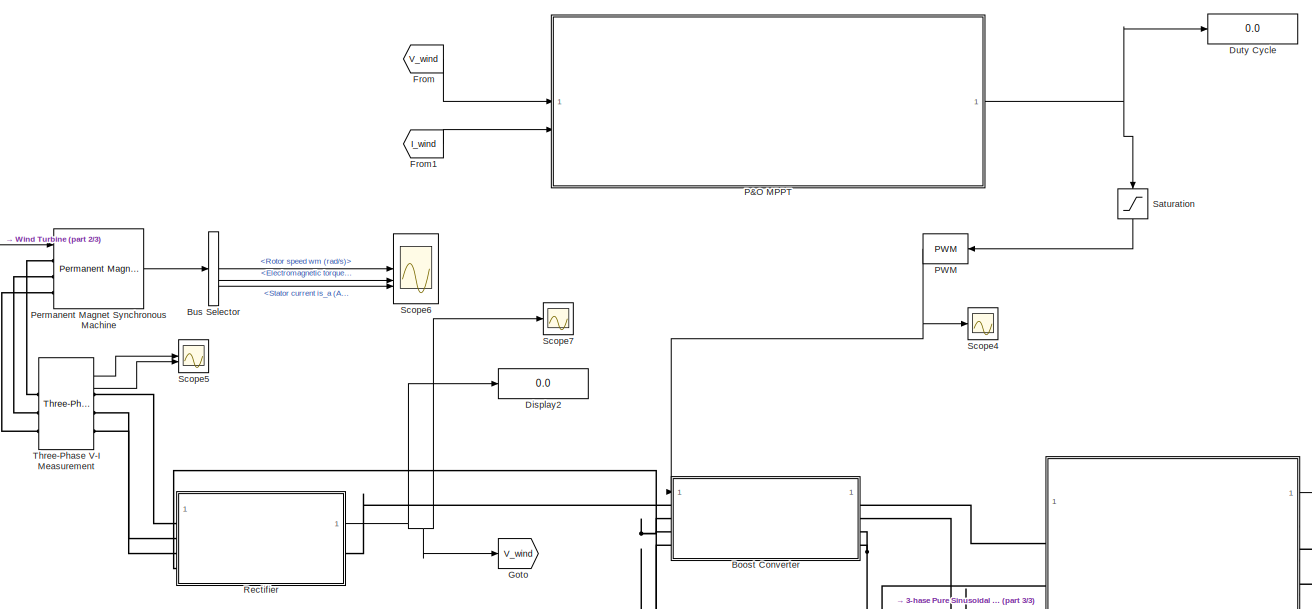
[diagram: root canvas - part 1/3, central region]
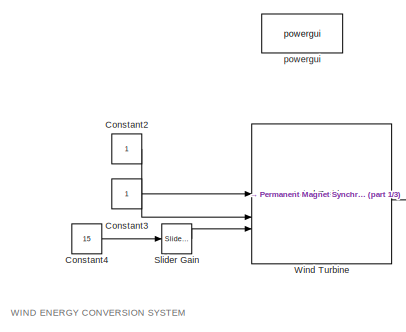
[diagram: root canvas - part 2/3, top left region]
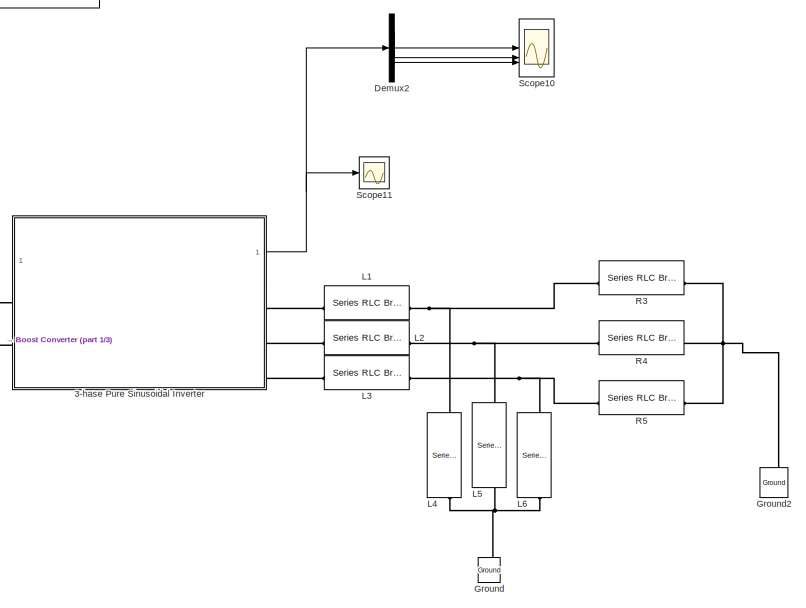
[diagram: root canvas - part 3/3, middle right region]
MODEL slx_7c10b3061226
KIND model
CONFIG AbsTol = auto
CONFIG EnableMultiTasking = off
CONFIG FixedStep = auto
CONFIG MaxStep = auto
CONFIG MinStep = auto
CONFIG RelTol = 1e-3
CONFIG SampleTimeConstraint = Unconstrained
CONFIG SolverName = VariableStepAuto
CONFIG StartTime = 0.0
CONFIG StopTime = 10.0
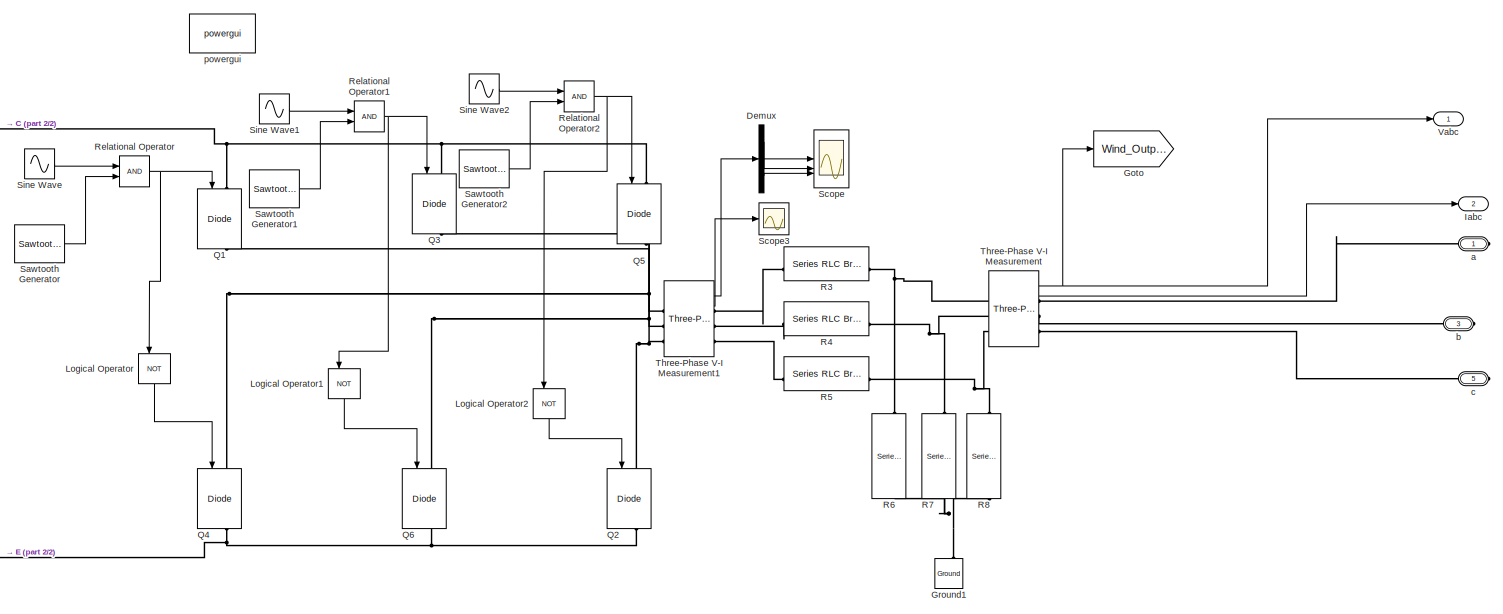
[diagram: 3-hase Pure Sinusoidal Inverter - part 1/2, most of the canvas]
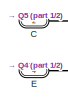
[diagram: 3-hase Pure Sinusoidal Inverter - part 2/2, middle left region]
BLOCK [SubSystem] 3-hase Pure Sinusoidal Inverter
BLOCK [PMIOPort] 3-hase Pure Sinusoidal Inverter/C
  Port = 2
  Side = Left
BLOCK [Demux] 3-hase Pure Sinusoidal Inverter/Demux
  Outputs = 3
BLOCK [PMIOPort] 3-hase Pure Sinusoidal Inverter/E
  Port = 4
  Side = Left
BLOCK [Goto] 3-hase Pure Sinusoidal Inverter/Goto
  GotoTag = Wind_Output
BLOCK [Reference] 3-hase Pure Sinusoidal Inverter/Ground1  REF=spsGroundLib/Ground
  LibrarySourceBlock = sps_lib/Utilities/Ground
  NameLocation = right
  SourceBlock = spsGroundLib/Ground
  SourceType = Ground
BLOCK [Outport] 3-hase Pure Sinusoidal Inverter/Iabc
  Port = 2
BLOCK [Logic] 3-hase Pure Sinusoidal Inverter/Logical Operator
  AllPortsSameDT = off
  NameLocation = left
  Operator = NOT
  OutDataTypeStr = boolean
BLOCK [Logic] 3-hase Pure Sinusoidal Inverter/Logical Operator1
  AllPortsSameDT = off
  NameLocation = left
  Operator = NOT
  OutDataTypeStr = boolean
BLOCK [Logic] 3-hase Pure Sinusoidal Inverter/Logical Operator2
  AllPortsSameDT = off
  NameLocation = left
  Operator = NOT
  OutDataTypeStr = boolean
BLOCK [Reference] 3-hase Pure Sinusoidal Inverter/Q1  REF=spsIGBTDiodeLib/IGBT//Diode
  LibrarySourceBlock = sps_lib/Power Electronics/IGBT//Diode
  NameLocation = left
  SourceBlock = spsIGBTDiodeLib/IGBT//Diode
  SourceType = IGBT/Diode
BLOCK [Reference] 3-hase Pure Sinusoidal Inverter/Q2  REF=spsIGBTDiodeLib/IGBT//Diode
  LibrarySourceBlock = sps_lib/Power Electronics/IGBT//Diode
  NameLocation = left
  SourceBlock = spsIGBTDiodeLib/IGBT//Diode
  SourceType = IGBT/Diode
BLOCK [Reference] 3-hase Pure Sinusoidal Inverter/Q3  REF=spsIGBTDiodeLib/IGBT//Diode
  LibrarySourceBlock = sps_lib/Power Electronics/IGBT//Diode
  NameLocation = left
  SourceBlock = spsIGBTDiodeLib/IGBT//Diode
  SourceType = IGBT/Diode
BLOCK [Reference] 3-hase Pure Sinusoidal Inverter/Q4  REF=spsIGBTDiodeLib/IGBT//Diode
  LibrarySourceBlock = sps_lib/Power Electronics/IGBT//Diode
  NameLocation = left
  SourceBlock = spsIGBTDiodeLib/IGBT//Diode
  SourceType = IGBT/Diode
BLOCK [Reference] 3-hase Pure Sinusoidal Inverter/Q5  REF=spsIGBTDiodeLib/IGBT//Diode
  LibrarySourceBlock = sps_lib/Power Electronics/IGBT//Diode
  NameLocation = left
  SourceBlock = spsIGBTDiodeLib/IGBT//Diode
  SourceType = IGBT/Diode
BLOCK [Reference] 3-hase Pure Sinusoidal Inverter/Q6  REF=spsIGBTDiodeLib/IGBT//Diode
  LibrarySourceBlock = sps_lib/Power Electronics/IGBT//Diode
  NameLocation = left
  SourceBlock = spsIGBTDiodeLib/IGBT//Diode
  SourceType = IGBT/Diode
BLOCK [Reference] 3-hase Pure Sinusoidal Inverter/R3  REF=spsSeriesRLCBranchLib/Series RLC Branch
  LibrarySourceBlock = sps_lib/Passives/Series RLC Branch
  SourceBlock = spsSeriesRLCBranchLib/Series RLC Branch
  SourceType = Series RLC Branch
BLOCK [Reference] 3-hase Pure Sinusoidal Inverter/R4  REF=spsSeriesRLCBranchLib/Series RLC Branch
  LibrarySourceBlock = sps_lib/Passives/Series RLC Branch
  SourceBlock = spsSeriesRLCBranchLib/Series RLC Branch
  SourceType = Series RLC Branch
BLOCK [Reference] 3-hase Pure Sinusoidal Inverter/R5  REF=spsSeriesRLCBranchLib/Series RLC Branch
  LibrarySourceBlock = sps_lib/Passives/Series RLC Branch
  SourceBlock = spsSeriesRLCBranchLib/Series RLC Branch
  SourceType = Series RLC Branch
BLOCK [Reference] 3-hase Pure Sinusoidal Inverter/R6  REF=spsSeriesRLCBranchLib/Series RLC Branch
  LibrarySourceBlock = sps_lib/Passives/Series RLC Branch
  NameLocation = left
  SourceBlock = spsSeriesRLCBranchLib/Series RLC Branch
  SourceType = Series RLC Branch
BLOCK [Reference] 3-hase Pure Sinusoidal Inverter/R7  REF=spsSeriesRLCBranchLib/Series RLC Branch
  LibrarySourceBlock = sps_lib/Passives/Series RLC Branch
  NameLocation = left
  SourceBlock = spsSeriesRLCBranchLib/Series RLC Branch
  SourceType = Series RLC Branch
BLOCK [Reference] 3-hase Pure Sinusoidal Inverter/R8  REF=spsSeriesRLCBranchLib/Series RLC Branch
  LibrarySourceBlock = sps_lib/Passives/Series RLC Branch
  NameLocation = left
  SourceBlock = spsSeriesRLCBranchLib/Series RLC Branch
  SourceType = Series RLC Branch
BLOCK [RelationalOperator] 3-hase Pure Sinusoidal Inverter/Relational Operator
  InputSameDT = off
  OutDataTypeStr = boolean
BLOCK [RelationalOperator] 3-hase Pure Sinusoidal Inverter/Relational Operator1
  InputSameDT = off
  OutDataTypeStr = boolean
BLOCK [RelationalOperator] 3-hase Pure Sinusoidal Inverter/Relational Operator2
  InputSameDT = off
  OutDataTypeStr = boolean
BLOCK [Reference] 3-hase Pure Sinusoidal Inverter/Sawtooth Generator  REF=spsSawtoothGeneratorLib/Sawtooth
Generator
  LibrarySourceBlock = sps_lib/Sources/Signal Generator Sources/Sawtooth\nGenerator
  SourceBlock = spsSawtoothGeneratorLib/Sawtooth\nGenerator
  SourceType = Sawtooth Generator
BLOCK [Reference] 3-hase Pure Sinusoidal Inverter/Sawtooth Generator1  REF=spsSawtoothGeneratorLib/Sawtooth
Generator
  LibrarySourceBlock = sps_lib/Sources/Signal Generator Sources/Sawtooth\nGenerator
  SourceBlock = spsSawtoothGeneratorLib/Sawtooth\nGenerator
  SourceType = Sawtooth Generator
BLOCK [Reference] 3-hase Pure Sinusoidal Inverter/Sawtooth Generator2  REF=spsSawtoothGeneratorLib/Sawtooth
Generator
  LibrarySourceBlock = sps_lib/Sources/Signal Generator Sources/Sawtooth\nGenerator
  SourceBlock = spsSawtoothGeneratorLib/Sawtooth\nGenerator
  SourceType = Sawtooth Generator
BLOCK [Scope] 3-hase Pure Sinusoidal Inverter/Scope
  Floating = off
  NumInputPorts = 3
  ScopeSpecificationString = Simulink.scopes.TimeScopeBlockCfg('CurrentConfiguration', extmgr.ConfigurationSet(extmgr.Configuration('Core','General UI',true),extmgr.Configuration('Core','Source UI',true),extmgr.Configuration('Sources','WiredSimulink',true,'DataLoggingLimitDataPoints',true,'DataLoggingSaveFormat','Array','DataLoggingDecimation','1','DataLoggingDecimateData',true),extmgr.Configuration('Visuals','Time Domain',tr...<+3315ch>
BLOCK [Scope] 3-hase Pure Sinusoidal Inverter/Scope3
  Floating = off
  NumInputPorts = 1
  ScopeSpecificationString = Simulink.scopes.TimeScopeBlockCfg('CurrentConfiguration', extmgr.ConfigurationSet(extmgr.Configuration('Core','General UI',true),extmgr.Configuration('Core','Source UI',true),extmgr.Configuration('Sources','WiredSimulink',true,'DataLoggingVariableName','ScopeData3'),extmgr.Configuration('Visuals','Time Domain',true),extmgr.Configuration('Tools','Plot Navigation',true),extmgr.Configuration('Tools',...<+40ch>
BLOCK [Sin] 3-hase Pure Sinusoidal Inverter/Sine Wave
  Amplitude = 0.9
  Frequency = 2*pi*50
  SampleTime = 0
BLOCK [Sin] 3-hase Pure Sinusoidal Inverter/Sine Wave1
  Amplitude = 0.9
  Frequency = 2*pi*50
  Phase = 120*(pi/180)
  SampleTime = 0
BLOCK [Sin] 3-hase Pure Sinusoidal Inverter/Sine Wave2
  Amplitude = 0.9
  Frequency = 2*pi*50
  Phase = 240*(pi/180)
  SampleTime = 0
BLOCK [Reference] 3-hase Pure Sinusoidal Inverter/Three-Phase V-I Measurement  REF=spsThreePhaseVIMeasurementLib/Three-Phase
V-I Measurement
  LibrarySourceBlock = sps_lib/Sensors and Measurements/Three-Phase\nV-I Measurement
  SourceBlock = spsThreePhaseVIMeasurementLib/Three-Phase\nV-I Measurement
  SourceType = Three-Phase VI Measurement
BLOCK [Reference] 3-hase Pure Sinusoidal Inverter/Three-Phase V-I Measurement1  REF=spsThreePhaseVIMeasurementLib/Three-Phase
V-I Measurement
  LibrarySourceBlock = sps_lib/Sensors and Measurements/Three-Phase\nV-I Measurement
  SourceBlock = spsThreePhaseVIMeasurementLib/Three-Phase\nV-I Measurement
  SourceType = Three-Phase VI Measurement
BLOCK [Outport] 3-hase Pure Sinusoidal Inverter/Vabc
BLOCK [PMIOPort] 3-hase Pure Sinusoidal Inverter/a
  Side = Right
BLOCK [PMIOPort] 3-hase Pure Sinusoidal Inverter/b
  Port = 3
  Side = Right
BLOCK [PMIOPort] 3-hase Pure Sinusoidal Inverter/c
  Port = 5
  Side = Right
BLOCK [Reference] 3-hase Pure Sinusoidal Inverter/powergui  REF=spspowerguiLib/powergui
  LibrarySourceBlock = sps_lib/powergui
  Priority = 1
  SourceBlock = spspowerguiLib/powergui
  SourceType = PSB option menu block
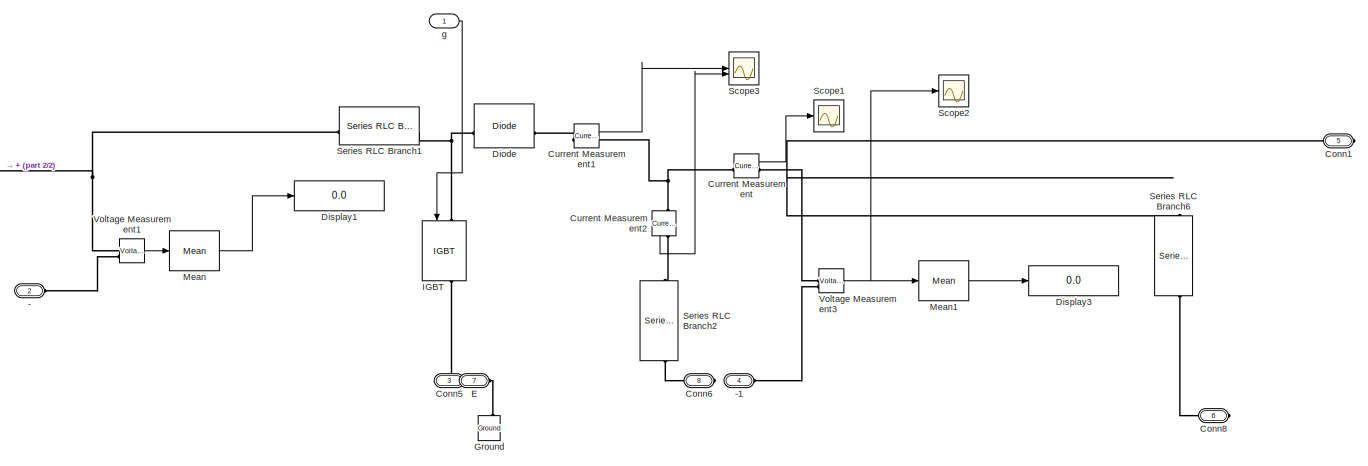
[diagram: Boost Converter - part 1/2, right side, full height]
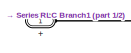
[diagram: Boost Converter - part 2/2, middle left region]
BLOCK [SubSystem] Boost Converter
BLOCK [PMIOPort] Boost Converter/+
  Side = Left
BLOCK [PMIOPort] Boost Converter/-
  Port = 2
  Side = Left
BLOCK [PMIOPort] Boost Converter/-1
  Port = 4
  Side = Left
BLOCK [PMIOPort] Boost Converter/Conn1
  Port = 5
  Side = Right
BLOCK [PMIOPort] Boost Converter/Conn5
  Port = 3
  Side = Left
BLOCK [PMIOPort] Boost Converter/Conn6
  Port = 8
  Side = Right
BLOCK [PMIOPort] Boost Converter/Conn8
  Port = 6
  Side = Right
BLOCK [Reference] Boost Converter/Current Measurement  REF=spsCurrentMeasurementLib/Current Measurement
  LibrarySourceBlock = sps_lib/Sensors and Measurements/Current Measurement
  SourceBlock = spsCurrentMeasurementLib/Current Measurement
  SourceType = Current Measurement
  UserDataPersistent = on
BLOCK [Reference] Boost Converter/Current Measurement1  REF=spsCurrentMeasurementLib/Current Measurement
  LibrarySourceBlock = sps_lib/Sensors and Measurements/Current Measurement
  SourceBlock = spsCurrentMeasurementLib/Current Measurement
  SourceType = Current Measurement
  UserDataPersistent = on
BLOCK [Reference] Boost Converter/Current Measurement2  REF=spsCurrentMeasurementLib/Current Measurement
  LibrarySourceBlock = sps_lib/Sensors and Measurements/Current Measurement
  NameLocation = left
  SourceBlock = spsCurrentMeasurementLib/Current Measurement
  SourceType = Current Measurement
  UserDataPersistent = on
BLOCK [Reference] Boost Converter/Diode  REF=spsDiodeLib/Diode
  LibrarySourceBlock = sps_lib/Power Electronics/Diode
  SourceBlock = spsDiodeLib/Diode
  SourceType = Diode
BLOCK [Display] Boost Converter/Display1
  Decimation = 1
BLOCK [Display] Boost Converter/Display3
  Decimation = 1
BLOCK [PMIOPort] Boost Converter/E
  Port = 7
  Side = Right
BLOCK [Reference] Boost Converter/Ground  REF=spsGroundLib/Ground
  LibrarySourceBlock = sps_lib/Utilities/Ground
  NameLocation = right
  SourceBlock = spsGroundLib/Ground
  SourceType = Ground
BLOCK [Reference] Boost Converter/IGBT  REF=spsIGBTLib/IGBT
  LibrarySourceBlock = sps_lib/Power Electronics/IGBT
  NameLocation = left
  SourceBlock = spsIGBTLib/IGBT
  SourceType = IGBT
BLOCK [Reference] Boost Converter/Mean  REF=spsMeanLib/Mean
  LibrarySourceBlock = sps_lib/Sensors and Measurements/Mean
  SourceBlock = spsMeanLib/Mean
  SourceType = Mean
BLOCK [Reference] Boost Converter/Mean1  REF=spsMeanLib/Mean
  LibrarySourceBlock = sps_lib/Sensors and Measurements/Mean
  SourceBlock = spsMeanLib/Mean
  SourceType = Mean
BLOCK [Scope] Boost Converter/Scope1
  Floating = off
  NumInputPorts = 1
  ScopeSpecificationString = Simulink.scopes.TimeScopeBlockCfg('CurrentConfiguration', extmgr.ConfigurationSet(extmgr.Configuration('Core','General UI',true),extmgr.Configuration('Core','Source UI',true),extmgr.Configuration('Sources','WiredSimulink',true,'DataLoggingVariableName','ScopeData1'),extmgr.Configuration('Visuals','Time Domain',true,'SerializedDisplays',{struct('MinYLimReal','-0.03717','MaxYLimReal','0.3345','YLabe...<+1563ch>
BLOCK [Scope] Boost Converter/Scope2
  Floating = off
  NumInputPorts = 1
  ScopeSpecificationString = Simulink.scopes.TimeScopeBlockCfg('CurrentConfiguration', extmgr.ConfigurationSet(extmgr.Configuration('Core','General UI',true),extmgr.Configuration('Core','Source UI',true),extmgr.Configuration('Sources','WiredSimulink',true,'DataLoggingVariableName','ScopeData2'),extmgr.Configuration('Visuals','Time Domain',true,'SerializedDisplays',{struct('MinYLimReal','-0.14141','MaxYLimReal','1.27266','YLab...<+1568ch>
BLOCK [Scope] Boost Converter/Scope3
  Floating = off
  NumInputPorts = 2
  ScopeSpecificationString = Simulink.scopes.TimeScopeBlockCfg('CurrentConfiguration', extmgr.ConfigurationSet(extmgr.Configuration('Core','General UI',true),extmgr.Configuration('Core','Source UI',true),extmgr.Configuration('Sources','WiredSimulink',true,'DataLoggingVariableName','ScopeData3'),extmgr.Configuration('Visuals','Time Domain',true,'SerializedDisplays',{struct('MinYLimReal','-1.13646','MaxYLimReal','8.81548','YLab...<+2426ch>
BLOCK [Reference] Boost Converter/Series RLC Branch1  REF=spsSeriesRLCBranchLib/Series RLC Branch
  LibrarySourceBlock = sps_lib/Passives/Series RLC Branch
  SourceBlock = spsSeriesRLCBranchLib/Series RLC Branch
  SourceType = Series RLC Branch
BLOCK [Reference] Boost Converter/Series RLC Branch2  REF=spsSeriesRLCBranchLib/Series RLC Branch
  LibrarySourceBlock = sps_lib/Passives/Series RLC Branch
  NameLocation = left
  SourceBlock = spsSeriesRLCBranchLib/Series RLC Branch
  SourceType = Series RLC Branch
BLOCK [Reference] Boost Converter/Series RLC Branch6  REF=spsSeriesRLCBranchLib/Series RLC Branch
  LibrarySourceBlock = sps_lib/Passives/Series RLC Branch
  NameLocation = left
  SourceBlock = spsSeriesRLCBranchLib/Series RLC Branch
  SourceType = Series RLC Branch
BLOCK [Reference] Boost Converter/Voltage Measurement1  REF=spsVoltageMeasurementLib/Voltage Measurement
  LibrarySourceBlock = sps_lib/Sensors and Measurements/Voltage Measurement
  SourceBlock = spsVoltageMeasurementLib/Voltage Measurement
  SourceType = Voltage Measurement
  UserDataPersistent = on
BLOCK [Reference] Boost Converter/Voltage Measurement3  REF=spsVoltageMeasurementLib/Voltage Measurement
  LibrarySourceBlock = sps_lib/Sensors and Measurements/Voltage Measurement
  SourceBlock = spsVoltageMeasurementLib/Voltage Measurement
  SourceType = Voltage Measurement
  UserDataPersistent = on
BLOCK [Inport] Boost Converter/g
BLOCK [BusSelector] Bus Selector
  OutputSignals = Rotor speed wm (rad/s),Electromagnetic torque Te (N*m),Stator current is_a (A)
BLOCK [Constant] Constant2
BLOCK [Constant] Constant3
BLOCK [Constant] Constant4
  Value = 15
BLOCK [Demux] Demux2
  Outputs = 3
BLOCK [Display] Display2
  Decimation = 1
BLOCK [Display] Duty Cycle
  Decimation = 1
BLOCK [From] From
  GotoTag = V_wind
BLOCK [From] From1
  GotoTag = I_wind
BLOCK [Goto] Goto
  GotoTag = V_wind
BLOCK [Reference] Ground  REF=spsGroundLib/Ground
  LibrarySourceBlock = sps_lib/Utilities/Ground
  NameLocation = right
  SourceBlock = spsGroundLib/Ground
  SourceType = Ground
BLOCK [Reference] Ground2  REF=spsGroundLib/Ground
  LibrarySourceBlock = sps_lib/Utilities/Ground
  NameLocation = right
  SourceBlock = spsGroundLib/Ground
  SourceType = Ground
BLOCK [Reference] L1  REF=spsSeriesRLCBranchLib/Series RLC Branch
  LibrarySourceBlock = sps_lib/Passives/Series RLC Branch
  SourceBlock = spsSeriesRLCBranchLib/Series RLC Branch
  SourceType = Series RLC Branch
BLOCK [Reference] L2  REF=spsSeriesRLCBranchLib/Series RLC Branch
  LibrarySourceBlock = sps_lib/Passives/Series RLC Branch
  SourceBlock = spsSeriesRLCBranchLib/Series RLC Branch
  SourceType = Series RLC Branch
BLOCK [Reference] L3  REF=spsSeriesRLCBranchLib/Series RLC Branch
  LibrarySourceBlock = sps_lib/Passives/Series RLC Branch
  SourceBlock = spsSeriesRLCBranchLib/Series RLC Branch
  SourceType = Series RLC Branch
BLOCK [Reference] L4  REF=spsSeriesRLCBranchLib/Series RLC Branch
  LibrarySourceBlock = sps_lib/Passives/Series RLC Branch
  NameLocation = right
  SourceBlock = spsSeriesRLCBranchLib/Series RLC Branch
  SourceType = Series RLC Branch
BLOCK [Reference] L5  REF=spsSeriesRLCBranchLib/Series RLC Branch
  LibrarySourceBlock = sps_lib/Passives/Series RLC Branch
  NameLocation = right
  SourceBlock = spsSeriesRLCBranchLib/Series RLC Branch
  SourceType = Series RLC Branch
BLOCK [Reference] L6  REF=spsSeriesRLCBranchLib/Series RLC Branch
  LibrarySourceBlock = sps_lib/Passives/Series RLC Branch
  NameLocation = right
  SourceBlock = spsSeriesRLCBranchLib/Series RLC Branch
  SourceType = Series RLC Branch
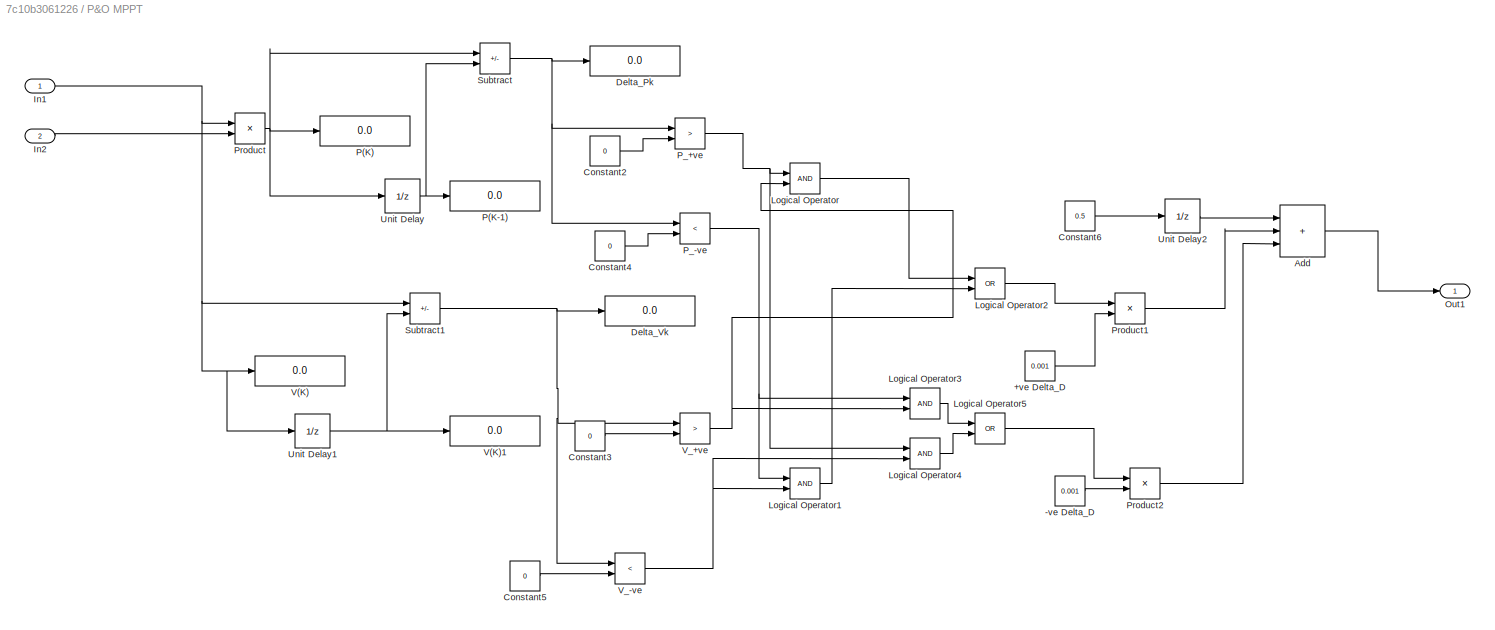
BLOCK [SubSystem] P&O MPPT
BLOCK [Constant] P&O MPPT/+ve Delta_D
  Value = 0.001
BLOCK [Constant] P&O MPPT/-ve Delta_D
  Value = 0.001
BLOCK [Sum] P&O MPPT/Add
  IconShape = rectangular
  Inputs = +++
BLOCK [Constant] P&O MPPT/Constant2
  Value = 0
BLOCK [Constant] P&O MPPT/Constant3
  Value = 0
BLOCK [Constant] P&O MPPT/Constant4
  Value = 0
BLOCK [Constant] P&O MPPT/Constant5
  Value = 0
BLOCK [Constant] P&O MPPT/Constant6
  Value = 0.5
BLOCK [Display] P&O MPPT/Delta_Pk
  Decimation = 1
BLOCK [Display] P&O MPPT/Delta_Vk
  Decimation = 1
BLOCK [Inport] P&O MPPT/In1
BLOCK [Inport] P&O MPPT/In2
  Port = 2
BLOCK [Logic] P&O MPPT/Logical Operator
  AllPortsSameDT = off
  OutDataTypeStr = boolean
BLOCK [Logic] P&O MPPT/Logical Operator1
  AllPortsSameDT = off
  OutDataTypeStr = boolean
BLOCK [Logic] P&O MPPT/Logical Operator2
  AllPortsSameDT = off
  Operator = OR
  OutDataTypeStr = boolean
BLOCK [Logic] P&O MPPT/Logical Operator3
  AllPortsSameDT = off
  OutDataTypeStr = boolean
BLOCK [Logic] P&O MPPT/Logical Operator4
  AllPortsSameDT = off
  OutDataTypeStr = boolean
BLOCK [Logic] P&O MPPT/Logical Operator5
  AllPortsSameDT = off
  Operator = OR
  OutDataTypeStr = boolean
BLOCK [Outport] P&O MPPT/Out1
BLOCK [Display] P&O MPPT/P(K)
  Decimation = 1
BLOCK [Display] P&O MPPT/P(K-1)
  Decimation = 1
BLOCK [RelationalOperator] P&O MPPT/P_+ve
  InputSameDT = off
  Operator = >
  OutDataTypeStr = boolean
  RndMeth = Simplest
BLOCK [RelationalOperator] P&O MPPT/P_-ve
  InputSameDT = off
  Operator = <
  OutDataTypeStr = boolean
  RndMeth = Simplest
BLOCK [Product] P&O MPPT/Product
BLOCK [Product] P&O MPPT/Product1
BLOCK [Product] P&O MPPT/Product2
BLOCK [Sum] P&O MPPT/Subtract
  IconShape = rectangular
  Inputs = +-
BLOCK [Sum] P&O MPPT/Subtract1
  IconShape = rectangular
  Inputs = +-
BLOCK [UnitDelay] P&O MPPT/Unit Delay
  HasFrameUpgradeWarning = on
  SampleTime = -1
BLOCK [UnitDelay] P&O MPPT/Unit Delay1
  HasFrameUpgradeWarning = on
  SampleTime = -1
BLOCK [UnitDelay] P&O MPPT/Unit Delay2
  HasFrameUpgradeWarning = on
  SampleTime = -1
BLOCK [Display] P&O MPPT/V(K)
  Decimation = 1
BLOCK [Display] P&O MPPT/V(K)1
  Decimation = 1
BLOCK [RelationalOperator] P&O MPPT/V_+ve
  InputSameDT = off
  Operator = >
  OutDataTypeStr = boolean
  RndMeth = Simplest
BLOCK [RelationalOperator] P&O MPPT/V_-ve
  InputSameDT = off
  Operator = <
  OutDataTypeStr = boolean
  RndMeth = Simplest
BLOCK [Reference] PWM  REF=simulink/Discontinuities/PWM
  DisableCoverage = on
  NameLocation = top
  SourceBlock = simulink/Discontinuities/PWM
  SourceType = PWM
BLOCK [Reference] Permanent Magnet Synchronous Machine  REF=spsPermanentMagnetSynchronousMachineLib/Permanent Magnet
Synchronous Machine
  LibrarySourceBlock = sps_lib/Electrical Machines/Permanent Magnet\nSynchronous Machine
  SourceBlock = spsPermanentMagnetSynchronousMachineLib/Permanent Magnet\nSynchronous Machine
  SourceType = Permanent Magnet Synchronous Machine
BLOCK [Reference] R3  REF=spsSeriesRLCBranchLib/Series RLC Branch
  LibrarySourceBlock = sps_lib/Passives/Series RLC Branch
  SourceBlock = spsSeriesRLCBranchLib/Series RLC Branch
  SourceType = Series RLC Branch
BLOCK [Reference] R4  REF=spsSeriesRLCBranchLib/Series RLC Branch
  LibrarySourceBlock = sps_lib/Passives/Series RLC Branch
  SourceBlock = spsSeriesRLCBranchLib/Series RLC Branch
  SourceType = Series RLC Branch
BLOCK [Reference] R5  REF=spsSeriesRLCBranchLib/Series RLC Branch
  LibrarySourceBlock = sps_lib/Passives/Series RLC Branch
  SourceBlock = spsSeriesRLCBranchLib/Series RLC Branch
  SourceType = Series RLC Branch
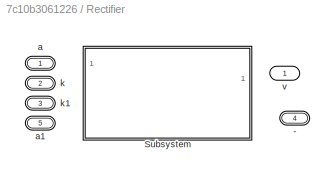
BLOCK [SubSystem] Rectifier
  LabelModeActiveChoice = Subsystem
  Variant = on
  VariantControl = Subsystem
  VariantControlMode = label
BLOCK [PMIOPort] Rectifier/-
  Port = 4
  Side = Right
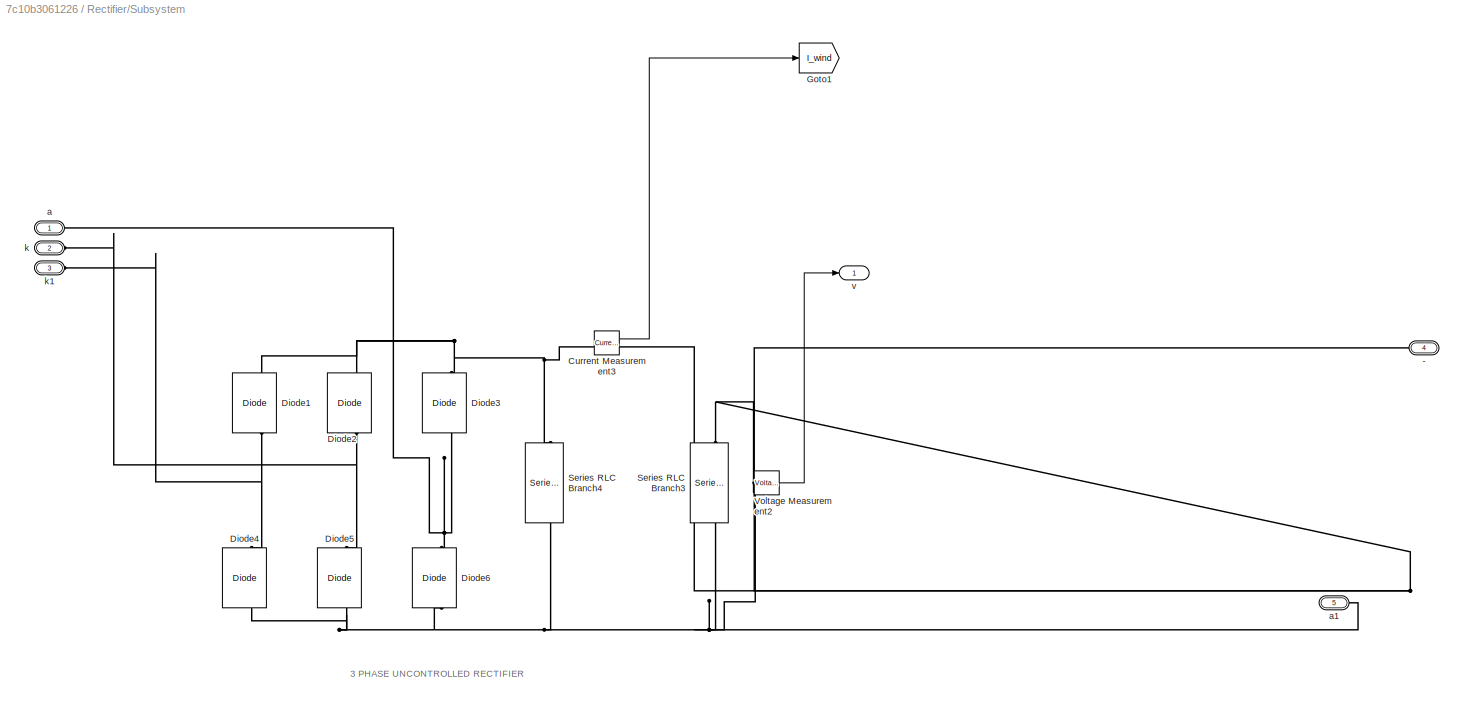
BLOCK [SubSystem] Rectifier/Subsystem
  VariantControl = Subsystem
BLOCK [PMIOPort] Rectifier/Subsystem/-
  Port = 4
  Side = Right
BLOCK [Reference] Rectifier/Subsystem/Current Measurement3  REF=spsCurrentMeasurementLib/Current Measurement
  LibrarySourceBlock = sps_lib/Sensors and Measurements/Current Measurement
  SourceBlock = spsCurrentMeasurementLib/Current Measurement
  SourceType = Current Measurement
  UserDataPersistent = on
BLOCK [Reference] Rectifier/Subsystem/Diode1  REF=spsDiodeLib/Diode
  LibrarySourceBlock = sps_lib/Power Electronics/Diode
  NameLocation = right
  SourceBlock = spsDiodeLib/Diode
  SourceType = Diode
BLOCK [Reference] Rectifier/Subsystem/Diode2  REF=spsDiodeLib/Diode
  LibrarySourceBlock = sps_lib/Power Electronics/Diode
  NameLocation = right
  SourceBlock = spsDiodeLib/Diode
  SourceType = Diode
BLOCK [Reference] Rectifier/Subsystem/Diode3  REF=spsDiodeLib/Diode
  LibrarySourceBlock = sps_lib/Power Electronics/Diode
  NameLocation = right
  SourceBlock = spsDiodeLib/Diode
  SourceType = Diode
BLOCK [Reference] Rectifier/Subsystem/Diode4  REF=spsDiodeLib/Diode
  LibrarySourceBlock = sps_lib/Power Electronics/Diode
  NameLocation = right
  SourceBlock = spsDiodeLib/Diode
  SourceType = Diode
BLOCK [Reference] Rectifier/Subsystem/Diode5  REF=spsDiodeLib/Diode
  LibrarySourceBlock = sps_lib/Power Electronics/Diode
  NameLocation = right
  SourceBlock = spsDiodeLib/Diode
  SourceType = Diode
BLOCK [Reference] Rectifier/Subsystem/Diode6  REF=spsDiodeLib/Diode
  LibrarySourceBlock = sps_lib/Power Electronics/Diode
  NameLocation = right
  SourceBlock = spsDiodeLib/Diode
  SourceType = Diode
BLOCK [Goto] Rectifier/Subsystem/Goto1
  GotoTag = I_wind
BLOCK [Reference] Rectifier/Subsystem/Series RLC Branch3  REF=spsSeriesRLCBranchLib/Series RLC Branch
  LibrarySourceBlock = sps_lib/Passives/Series RLC Branch
  NameLocation = left
  SourceBlock = spsSeriesRLCBranchLib/Series RLC Branch
  SourceType = Series RLC Branch
BLOCK [Reference] Rectifier/Subsystem/Series RLC Branch4  REF=spsSeriesRLCBranchLib/Series RLC Branch
  LibrarySourceBlock = sps_lib/Passives/Series RLC Branch
  NameLocation = left
  SourceBlock = spsSeriesRLCBranchLib/Series RLC Branch
  SourceType = Series RLC Branch
BLOCK [Reference] Rectifier/Subsystem/Voltage Measurement2  REF=spsVoltageMeasurementLib/Voltage Measurement
  LibrarySourceBlock = sps_lib/Sensors and Measurements/Voltage Measurement
  SourceBlock = spsVoltageMeasurementLib/Voltage Measurement
  SourceType = Voltage Measurement
  UserDataPersistent = on
BLOCK [PMIOPort] Rectifier/Subsystem/a
  Side = Left
BLOCK [PMIOPort] Rectifier/Subsystem/a1
  Port = 5
  Side = Left
BLOCK [PMIOPort] Rectifier/Subsystem/k
  Port = 2
  Side = Left
BLOCK [PMIOPort] Rectifier/Subsystem/k1
  Port = 3
  Side = Left
BLOCK [Outport] Rectifier/Subsystem/v
BLOCK [PMIOPort] Rectifier/a
  Side = Left
BLOCK [PMIOPort] Rectifier/a1
  Port = 5
  Side = Left
BLOCK [PMIOPort] Rectifier/k
  Port = 2
  Side = Left
BLOCK [PMIOPort] Rectifier/k1
  Port = 3
  Side = Left
BLOCK [Outport] Rectifier/v
BLOCK [Saturate] Saturation
  LowerLimit = 0.1
  NameLocation = left
  UpperLimit = 0.9
BLOCK [Scope] Scope10
  Floating = off
  NumInputPorts = 3
  ScopeSpecificationString = Simulink.scopes.TimeScopeBlockCfg('CurrentConfiguration', extmgr.ConfigurationSet(extmgr.Configuration('Core','General UI',true),extmgr.Configuration('Core','Source UI',true),extmgr.Configuration('Sources','WiredSimulink',true,'DataLoggingVariableName','ScopeData1','DataLoggingLimitDataPoints',true,'DataLoggingSaveFormat','Array','DataLoggingDecimation','1','DataLoggingDecimateData',true),extmgr.C...<+3342ch>
BLOCK [Scope] Scope11
  Floating = off
  NumInputPorts = 1
  ScopeSpecificationString = Simulink.scopes.TimeScopeBlockCfg('CurrentConfiguration', extmgr.ConfigurationSet(extmgr.Configuration('Core','General UI',true,'FigureColor',[0 1 1]),extmgr.Configuration('Core','Source UI',true),extmgr.Configuration('Sources','WiredSimulink',true,'DataLoggingVariableName','ScopeData2'),extmgr.Configuration('Visuals','Time Domain',true,'SerializedDisplays',{struct('MinYLimReal','-3.22858','MaxYLi...<+1656ch>
BLOCK [Scope] Scope4
  Floating = off
  NumInputPorts = 1
  ScopeSpecificationString = Simulink.scopes.TimeScopeBlockCfg('CurrentConfiguration', extmgr.ConfigurationSet(extmgr.Configuration('Core','General UI',true),extmgr.Configuration('Core','Source UI',true),extmgr.Configuration('Sources','WiredSimulink',true,'DataLoggingVariableName','ScopeData4'),extmgr.Configuration('Visuals','Time Domain',true,'SerializedDisplays',{struct('MinYLimReal','-0.125','MaxYLimReal','1.125','YLabelRe...<+1565ch>
BLOCK [Scope] Scope5
  Floating = off
  NumInputPorts = 2
  ScopeSpecificationString = Simulink.scopes.TimeScopeBlockCfg('CurrentConfiguration', extmgr.ConfigurationSet(extmgr.Configuration('Core','General UI',true,'FigureColor',[0 1 1]),extmgr.Configuration('Core','Source UI',true),extmgr.Configuration('Sources','WiredSimulink',true,'DataLoggingVariableName','ScopeData3'),extmgr.Configuration('Visuals','Time Domain',true,'SerializedDisplays',{struct('MinYLimReal','-4.73152','MaxYLi...<+2426ch>
BLOCK [Scope] Scope6
  Floating = off
  NumInputPorts = 3
  ScopeSpecificationString = Simulink.scopes.TimeScopeBlockCfg('CurrentConfiguration', extmgr.ConfigurationSet(extmgr.Configuration('Core','General UI',true,'FigureColor',[0 1 1]),extmgr.Configuration('Core','Source UI',true),extmgr.Configuration('Sources','WiredSimulink',true,'DataLoggingVariableName','ScopeData4'),extmgr.Configuration('Visuals','Time Domain',true,'SerializedDisplays',{struct('MinYLimReal','-0.54439','MaxYLi...<+3318ch>
BLOCK [Scope] Scope7
  Floating = off
  NumInputPorts = 1
  ScopeSpecificationString = Simulink.scopes.TimeScopeBlockCfg('CurrentConfiguration', extmgr.ConfigurationSet(extmgr.Configuration('Core','General UI',true),extmgr.Configuration('Core','Source UI',true),extmgr.Configuration('Sources','WiredSimulink',true,'DataLoggingVariableName','ScopeData5'),extmgr.Configuration('Visuals','Time Domain',true,'SerializedDisplays',{struct('MinYLimReal','-7.21764','MaxYLimReal','64.95873','YLa...<+1572ch>
BLOCK [Reference] Slider Gain  REF=simulink/Math
Operations/Slider
Gain
  SourceBlock = simulink/Math\nOperations/Slider\nGain
  SourceType = Slider Gain
BLOCK [Reference] Three-Phase V-I Measurement  REF=spsThreePhaseVIMeasurementLib/Three-Phase
V-I Measurement
  LibrarySourceBlock = sps_lib/Sensors and Measurements/Three-Phase\nV-I Measurement
  SourceBlock = spsThreePhaseVIMeasurementLib/Three-Phase\nV-I Measurement
  SourceType = Three-Phase VI Measurement
BLOCK [Reference] Wind Turbine  REF=spsWindTurbineLib/Wind Turbine
  LibrarySourceBlock = sps_lib/Electrical Machines/Wind Turbine
  SourceBlock = spsWindTurbineLib/Wind Turbine
  SourceType = Wind Turbine
BLOCK [Reference] powergui  REF=sps_lib/powergui
  LibrarySourceBlock = sps_lib/powergui
  Priority = 1
  SourceBlock = sps_lib/powergui
  SourceType = PSB option menu block
ANNOTATION (root): WIND ENERGY CONVERSION SYSTEM
ANNOTATION Rectifier/Subsystem: 3 PHASE UNCONTROLLED RECTIFIER
LINE 3-hase Pure Sinusoidal Inverter/Demux:1 -> 3-hase Pure Sinusoidal Inverter/Scope:1
LINE 3-hase Pure Sinusoidal Inverter/Demux:2 -> 3-hase Pure Sinusoidal Inverter/Scope:2
LINE 3-hase Pure Sinusoidal Inverter/Demux:3 -> 3-hase Pure Sinusoidal Inverter/Scope:3
LINE 3-hase Pure Sinusoidal Inverter/Logical Operator1:1 -> 3-hase Pure Sinusoidal Inverter/Q6:1
LINE 3-hase Pure Sinusoidal Inverter/Logical Operator2:1 -> 3-hase Pure Sinusoidal Inverter/Q2:1
LINE 3-hase Pure Sinusoidal Inverter/Logical Operator:1 -> 3-hase Pure Sinusoidal Inverter/Q4:1
NET 3-hase Pure Sinusoidal Inverter/Relational Operator1:1 -> 3-hase Pure Sinusoidal Inverter/Logical Operator1:1, 3-hase Pure Sinusoidal Inverter/Q3:1
NET 3-hase Pure Sinusoidal Inverter/Relational Operator2:1 -> 3-hase Pure Sinusoidal Inverter/Logical Operator2:1, 3-hase Pure Sinusoidal Inverter/Q5:1
NET 3-hase Pure Sinusoidal Inverter/Relational Operator:1 -> 3-hase Pure Sinusoidal Inverter/Logical Operator:1, 3-hase Pure Sinusoidal Inverter/Q1:1
LINE 3-hase Pure Sinusoidal Inverter/Sawtooth Generator1:1 -> 3-hase Pure Sinusoidal Inverter/Relational Operator1:2
LINE 3-hase Pure Sinusoidal Inverter/Sawtooth Generator2:1 -> 3-hase Pure Sinusoidal Inverter/Relational Operator2:2
LINE 3-hase Pure Sinusoidal Inverter/Sawtooth Generator:1 -> 3-hase Pure Sinusoidal Inverter/Relational Operator:2
LINE 3-hase Pure Sinusoidal Inverter/Sine Wave1:1 -> 3-hase Pure Sinusoidal Inverter/Relational Operator1:1
LINE 3-hase Pure Sinusoidal Inverter/Sine Wave2:1 -> 3-hase Pure Sinusoidal Inverter/Relational Operator2:1
LINE 3-hase Pure Sinusoidal Inverter/Sine Wave:1 -> 3-hase Pure Sinusoidal Inverter/Relational Operator:1
LINE 3-hase Pure Sinusoidal Inverter/Three-Phase V-I Measurement1:1 -> 3-hase Pure Sinusoidal Inverter/Demux:1
LINE 3-hase Pure Sinusoidal Inverter/Three-Phase V-I Measurement1:2 -> 3-hase Pure Sinusoidal Inverter/Scope3:1
NET 3-hase Pure Sinusoidal Inverter/Three-Phase V-I Measurement:1 -> 3-hase Pure Sinusoidal Inverter/Goto:1, 3-hase Pure Sinusoidal Inverter/Vabc:1
LINE 3-hase Pure Sinusoidal Inverter/Three-Phase V-I Measurement:2 -> 3-hase Pure Sinusoidal Inverter/Iabc:1
NET 3-hase Pure Sinusoidal Inverter:1 -> Demux2:1, Scope11:1
LINE Boost Converter/Current Measurement1:1 -> Boost Converter/Scope3:1
LINE Boost Converter/Current Measurement2:1 -> Boost Converter/Scope3:2
LINE Boost Converter/Current Measurement:1 -> Boost Converter/Scope1:1
LINE Boost Converter/Mean1:1 -> Boost Converter/Display3:1
LINE Boost Converter/Mean:1 -> Boost Converter/Display1:1
LINE Boost Converter/Voltage Measurement1:1 -> Boost Converter/Mean:1
NET Boost Converter/Voltage Measurement3:1 -> Boost Converter/Mean1:1, Boost Converter/Scope2:1
LINE Boost Converter/g:1 -> Boost Converter/IGBT:1
LINE Bus Selector:1 -> Scope6:1
LINE Bus Selector:2 -> Scope6:2
LINE Bus Selector:3 -> Scope6:3
LINE Constant2:1 -> Wind Turbine:1
LINE Constant3:1 -> Wind Turbine:2
LINE Constant4:1 -> Slider Gain:1
LINE Demux2:1 -> Scope10:1
LINE Demux2:2 -> Scope10:2
LINE Demux2:3 -> Scope10:3
LINE From1:1 -> P&O MPPT:2
LINE From:1 -> P&O MPPT:1
LINE P&O MPPT/+ve Delta_D:1 -> P&O MPPT/Product1:2
LINE P&O MPPT/-ve Delta_D:1 -> P&O MPPT/Product2:2
LINE P&O MPPT/Add:1 -> P&O MPPT/Out1:1
LINE P&O MPPT/Constant2:1 -> P&O MPPT/P_+ve:2
LINE P&O MPPT/Constant3:1 -> P&O MPPT/V_+ve:2
LINE P&O MPPT/Constant4:1 -> P&O MPPT/P_-ve:2
LINE P&O MPPT/Constant5:1 -> P&O MPPT/V_-ve:2
LINE P&O MPPT/Constant6:1 -> P&O MPPT/Unit Delay2:1
NET P&O MPPT/In1:1 -> P&O MPPT/Product:1, P&O MPPT/Subtract1:1, P&O MPPT/Unit Delay1:1, P&O MPPT/V(K):1
LINE P&O MPPT/In2:1 -> P&O MPPT/Product:2
LINE P&O MPPT/Logical Operator1:1 -> P&O MPPT/Logical Operator2:2
LINE P&O MPPT/Logical Operator2:1 -> P&O MPPT/Product1:1
LINE P&O MPPT/Logical Operator3:1 -> P&O MPPT/Logical Operator5:1
LINE P&O MPPT/Logical Operator4:1 -> P&O MPPT/Logical Operator5:2
LINE P&O MPPT/Logical Operator5:1 -> P&O MPPT/Product2:1
LINE P&O MPPT/Logical Operator:1 -> P&O MPPT/Logical Operator2:1
NET P&O MPPT/P_+ve:1 -> P&O MPPT/Logical Operator4:1, P&O MPPT/Logical Operator:1
NET P&O MPPT/P_-ve:1 -> P&O MPPT/Logical Operator1:1, P&O MPPT/Logical Operator3:1
LINE P&O MPPT/Product1:1 -> P&O MPPT/Add:2
LINE P&O MPPT/Product2:1 -> P&O MPPT/Add:3
NET P&O MPPT/Product:1 -> P&O MPPT/P(K):1, P&O MPPT/Subtract:1, P&O MPPT/Unit Delay:1
NET P&O MPPT/Subtract1:1 -> P&O MPPT/Delta_Vk:1, P&O MPPT/V_+ve:1, P&O MPPT/V_-ve:1
NET P&O MPPT/Subtract:1 -> P&O MPPT/Delta_Pk:1, P&O MPPT/P_+ve:1, P&O MPPT/P_-ve:1
NET P&O MPPT/Unit Delay1:1 -> P&O MPPT/Subtract1:2, P&O MPPT/V(K)1:1
LINE P&O MPPT/Unit Delay2:1 -> P&O MPPT/Add:1
NET P&O MPPT/Unit Delay:1 -> P&O MPPT/P(K-1):1, P&O MPPT/Subtract:2
NET P&O MPPT/V_+ve:1 -> P&O MPPT/Logical Operator3:2, P&O MPPT/Logical Operator:2
NET P&O MPPT/V_-ve:1 -> P&O MPPT/Logical Operator1:2, P&O MPPT/Logical Operator4:2
NET P&O MPPT:1 -> Duty Cycle:1, Saturation:1
NET PWM:1 -> Boost Converter:1, Scope4:1
LINE Permanent Magnet Synchronous Machine:1 -> Bus Selector:1
LINE Rectifier/Subsystem/Current Measurement3:1 -> Rectifier/Subsystem/Goto1:1
LINE Rectifier/Subsystem/Voltage Measurement2:1 -> Rectifier/Subsystem/v:1
NET Rectifier:1 -> Display2:1, Goto:1, Scope7:1
LINE Saturation:1 -> PWM:1
LINE Slider Gain:1 -> Wind Turbine:3
LINE Three-Phase V-I Measurement:1 -> Scope5:1
LINE Three-Phase V-I Measurement:2 -> Scope5:2
LINE Wind Turbine:1 -> Permanent Magnet Synchronous Machine:1
PNET net1: 3-hase Pure Sinusoidal Inverter/C:RConn1 -- 3-hase Pure Sinusoidal Inverter/Q1:LConn1 -- 3-hase Pure Sinusoidal Inverter/Q3:LConn1 -- 3-hase Pure Sinusoidal Inverter/Q5:LConn1
PNET net2: 3-hase Pure Sinusoidal Inverter/E:RConn1 -- 3-hase Pure Sinusoidal Inverter/Q2:RConn1 -- 3-hase Pure Sinusoidal Inverter/Q4:RConn1 -- 3-hase Pure Sinusoidal Inverter/Q6:RConn1
PNET net3: 3-hase Pure Sinusoidal Inverter/Ground1:LConn1 -- 3-hase Pure Sinusoidal Inverter/R6:RConn1 -- 3-hase Pure Sinusoidal Inverter/R7:RConn1 -- 3-hase Pure Sinusoidal Inverter/R8:RConn1
PNET net4: 3-hase Pure Sinusoidal Inverter/Q1:RConn1 -- 3-hase Pure Sinusoidal Inverter/Q4:LConn1 -- 3-hase Pure Sinusoidal Inverter/Three-Phase V-I Measurement1:LConn1
PNET net5: 3-hase Pure Sinusoidal Inverter/Q2:LConn1 -- 3-hase Pure Sinusoidal Inverter/Q5:RConn1 -- 3-hase Pure Sinusoidal Inverter/Three-Phase V-I Measurement1:LConn3
PNET net6: 3-hase Pure Sinusoidal Inverter/Q3:RConn1 -- 3-hase Pure Sinusoidal Inverter/Q6:LConn1 -- 3-hase Pure Sinusoidal Inverter/Three-Phase V-I Measurement1:LConn2
PLINE 3-hase Pure Sinusoidal Inverter/R3:LConn1 -- 3-hase Pure Sinusoidal Inverter/Three-Phase V-I Measurement1:RConn1
PNET net7: 3-hase Pure Sinusoidal Inverter/R3:RConn1 -- 3-hase Pure Sinusoidal Inverter/R6:LConn1 -- 3-hase Pure Sinusoidal Inverter/Three-Phase V-I Measurement:LConn1
PLINE 3-hase Pure Sinusoidal Inverter/R4:LConn1 -- 3-hase Pure Sinusoidal Inverter/Three-Phase V-I Measurement1:RConn2
PNET net8: 3-hase Pure Sinusoidal Inverter/R4:RConn1 -- 3-hase Pure Sinusoidal Inverter/R7:LConn1 -- 3-hase Pure Sinusoidal Inverter/Three-Phase V-I Measurement:LConn2
PLINE 3-hase Pure Sinusoidal Inverter/R5:LConn1 -- 3-hase Pure Sinusoidal Inverter/Three-Phase V-I Measurement1:RConn3
PNET net9: 3-hase Pure Sinusoidal Inverter/R5:RConn1 -- 3-hase Pure Sinusoidal Inverter/R8:LConn1 -- 3-hase Pure Sinusoidal Inverter/Three-Phase V-I Measurement:LConn3
PLINE 3-hase Pure Sinusoidal Inverter/Three-Phase V-I Measurement:RConn1 -- 3-hase Pure Sinusoidal Inverter/a:RConn1
PLINE 3-hase Pure Sinusoidal Inverter/Three-Phase V-I Measurement:RConn2 -- 3-hase Pure Sinusoidal Inverter/b:RConn1
PLINE 3-hase Pure Sinusoidal Inverter/Three-Phase V-I Measurement:RConn3 -- 3-hase Pure Sinusoidal Inverter/c:RConn1
PLINE 3-hase Pure Sinusoidal Inverter:LConn1 -- Boost Converter:RConn1
PNET net10: 3-hase Pure Sinusoidal Inverter:LConn2 -- Boost Converter:LConn2 -- Boost Converter:LConn3 -- Boost Converter:LConn4 -- Boost Converter:RConn2 -- Boost Converter:RConn3 -- Boost Converter:RConn4 -- Rectifier:LConn4
PLINE 3-hase Pure Sinusoidal Inverter:RConn1 -- L1:LConn1
PLINE 3-hase Pure Sinusoidal Inverter:RConn2 -- L2:LConn1
PLINE 3-hase Pure Sinusoidal Inverter:RConn3 -- L3:LConn1
PNET net11: Boost Converter/+:RConn1 -- Boost Converter/Series RLC Branch1:LConn1 -- Boost Converter/Voltage Measurement1:LConn1
PLINE Boost Converter/-1:RConn1 -- Boost Converter/Voltage Measurement3:LConn2
PLINE Boost Converter/-:RConn1 -- Boost Converter/Voltage Measurement1:LConn2
PNET net12: Boost Converter/Conn1:RConn1 -- Boost Converter/Current Measurement:RConn1 -- Boost Converter/Series RLC Branch6:LConn1 -- Boost Converter/Voltage Measurement3:LConn1
PLINE Boost Converter/Conn5:RConn1 -- Boost Converter/Ground:LConn1
PLINE Boost Converter/Conn6:RConn1 -- Boost Converter/Series RLC Branch2:RConn1
PLINE Boost Converter/Conn8:RConn1 -- Boost Converter/Series RLC Branch6:RConn1
PLINE Boost Converter/Current Measurement1:LConn1 -- Boost Converter/Diode:RConn1
PNET net13: Boost Converter/Current Measurement1:RConn1 -- Boost Converter/Current Measurement2:LConn1 -- Boost Converter/Current Measurement:LConn1
PLINE Boost Converter/Current Measurement2:RConn1 -- Boost Converter/Series RLC Branch2:LConn1
PNET net14: Boost Converter/Diode:LConn1 -- Boost Converter/IGBT:LConn1 -- Boost Converter/Series RLC Branch1:RConn1
PLINE Boost Converter/E:RConn1 -- Boost Converter/IGBT:RConn1
PLINE Boost Converter:LConn1 -- Rectifier:RConn1
PNET net15: Ground2:LConn1 -- R3:RConn1 -- R4:RConn1 -- R5:RConn1
PNET net16: Ground:LConn1 -- L4:LConn1 -- L5:LConn1 -- L6:LConn1
PNET net17: L1:RConn1 -- L4:RConn1 -- R3:LConn1
PNET net18: L2:RConn1 -- L5:RConn1 -- R4:LConn1
PNET net19: L3:RConn1 -- L6:RConn1 -- R5:LConn1
PLINE Permanent Magnet Synchronous Machine:LConn1 -- Three-Phase V-I Measurement:LConn1
PLINE Permanent Magnet Synchronous Machine:LConn2 -- Three-Phase V-I Measurement:LConn2
PLINE Permanent Magnet Synchronous Machine:LConn3 -- Three-Phase V-I Measurement:LConn3
PNET net20: Rectifier/Subsystem/-:RConn1 -- Rectifier/Subsystem/Current Measurement3:RConn1 -- Rectifier/Subsystem/Series RLC Branch3:LConn1 -- Rectifier/Subsystem/Voltage Measurement2:LConn1
PNET net21: Rectifier/Subsystem/Current Measurement3:LConn1 -- Rectifier/Subsystem/Diode1:RConn1 -- Rectifier/Subsystem/Diode2:RConn1 -- Rectifier/Subsystem/Diode3:RConn1 -- Rectifier/Subsystem/Series RLC Branch4:LConn1
PNET net22: Rectifier/Subsystem/Diode1:LConn1 -- Rectifier/Subsystem/Diode4:RConn1 -- Rectifier/Subsystem/k1:RConn1
PNET net23: Rectifier/Subsystem/Diode2:LConn1 -- Rectifier/Subsystem/Diode5:RConn1 -- Rectifier/Subsystem/k:RConn1
PNET net24: Rectifier/Subsystem/Diode3:LConn1 -- Rectifier/Subsystem/Diode6:RConn1 -- Rectifier/Subsystem/a:RConn1
PNET net25: Rectifier/Subsystem/Diode4:LConn1 -- Rectifier/Subsystem/Diode5:LConn1 -- Rectifier/Subsystem/Diode6:LConn1 -- Rectifier/Subsystem/Series RLC Branch3:RConn1 -- Rectifier/Subsystem/Series RLC Branch4:RConn1 -- Rectifier/Subsystem/Voltage Measurement2:LConn2 -- Rectifier/Subsystem/a1:RConn1
PLINE Rectifier:LConn1 -- Three-Phase V-I Measurement:RConn1
PLINE Rectifier:LConn2 -- Three-Phase V-I Measurement:RConn2
PLINE Rectifier:LConn3 -- Three-Phase V-I Measurement:RConn3
note: NET lines group one-source signal fan-out (src -> all destinations, sorted); 1:1 wires keep LINE; PNET lines group multi-terminal physical nets as a canonical sorted terminal list (undirected conserving connections); 2-terminal nets keep the pairwise PLINE form
